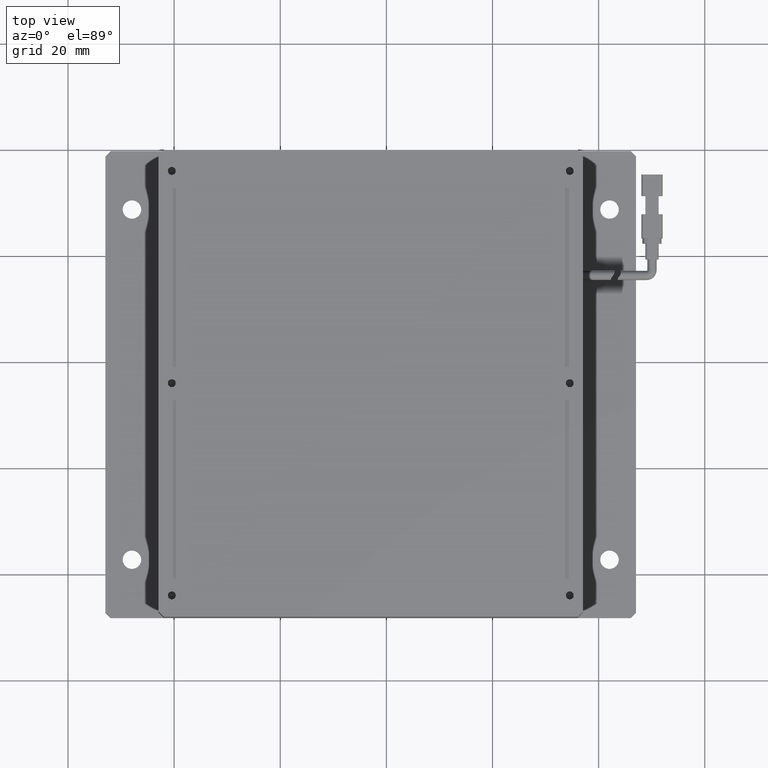
[diagram: clean part render]
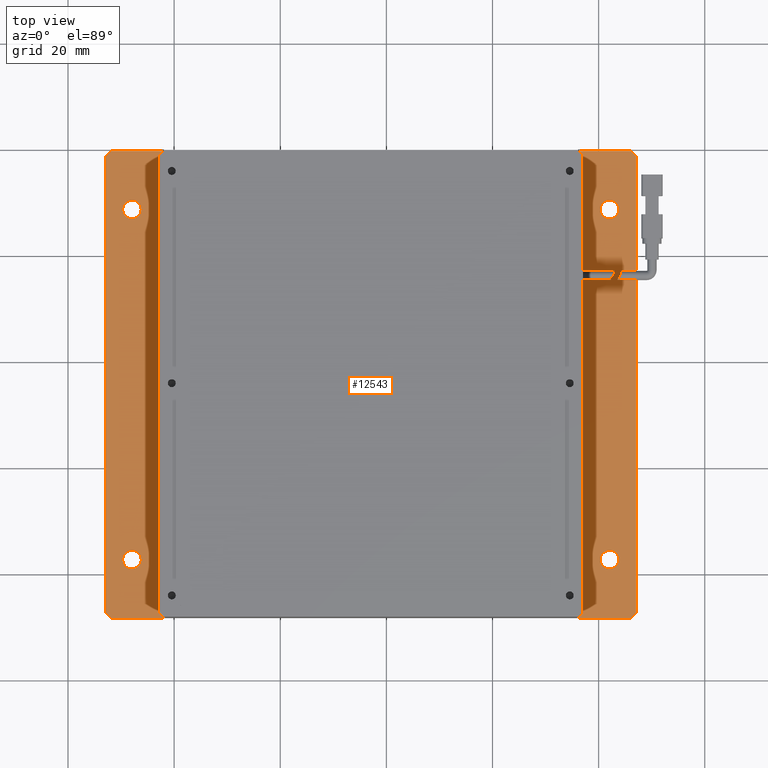
[diagram: same view with one face highlighted and labeled with its STEP entity id]
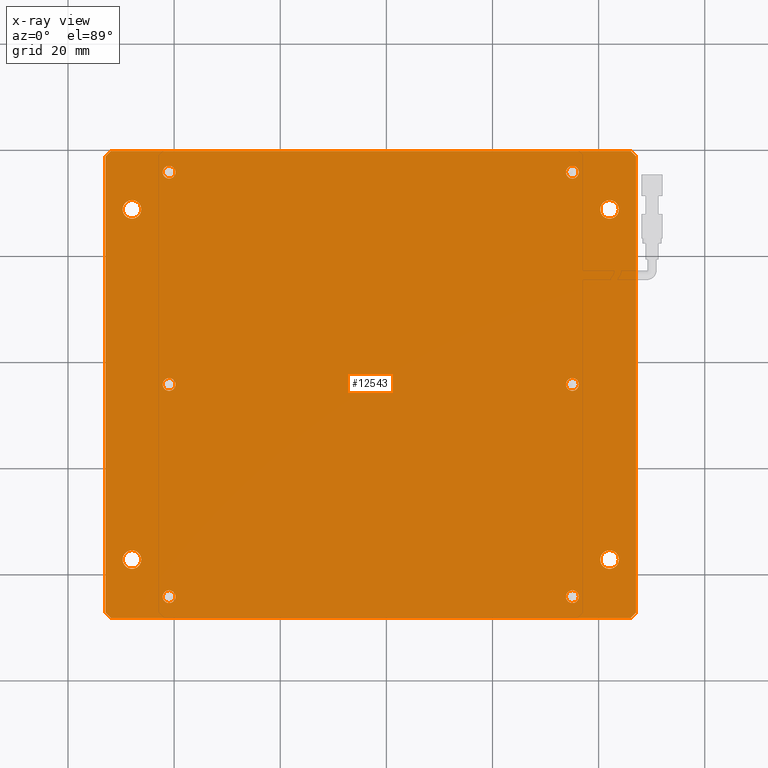
[diagram: x-ray of the same camera — body ghosted, the highlighted face saturated]
A machine part, top view. The second image highlights one B-rep face of the part: STEP entity #12543.
The next image is the same camera in x-ray: the body ghosted, the highlighted face saturated — about 0% of this face is hidden behind the body in this view.
In plain terms, the highlighted planar face has unit normal (0, 0, -1).
Its self-contained STEP definition (entity closure, byte-faithful):
#95 = CARTESIAN_POINT ( 'NONE',  ( -20.94768995799925500, 35.79992363497520800, -4.547577592273199800E-012 ) ) ;
#245 = EDGE_LOOP ( 'NONE', ( #7528, #15489 ) ) ;
#260 = DIRECTION ( 'NONE',  ( -0.7071067811865424700, 0.7071067811865526800, 0.0000000000000000000 ) ) ;
#278 = AXIS2_PLACEMENT_3D ( 'NONE', #13145, #4973, #14514 ) ;
#333 = CARTESIAN_POINT ( 'NONE',  ( -32.94768995799925900, 39.79992363497521500, -4.547577592273199800E-012 ) ) ;
#434 = LINE ( 'NONE', #16109, #4147 ) ;
#497 = AXIS2_PLACEMENT_3D ( 'NONE', #1814, #11435, #3230 ) ;
#641 = CARTESIAN_POINT ( 'NONE',  ( 55.05231004200073400, -44.20007636502478500, -4.547577592273199800E-012 ) ) ;
#708 = EDGE_CURVE ( 'NONE', #6803, #16233, #4785, .T. ) ;
#794 = ORIENTED_EDGE ( 'NONE', *, *, #5606, .F. ) ;
#895 = EDGE_CURVE ( 'NONE', #11322, #17503, #10952, .T. ) ;
#899 = DIRECTION ( 'NONE',  ( -1.000000000000000000, 0.0000000000000000000, 0.0000000000000000000 ) ) ;
#1105 = ORIENTED_EDGE ( 'NONE', *, *, #15283, .F. ) ;
#1118 = CARTESIAN_POINT ( 'NONE',  ( -19.74768995799926300, 35.79992363497520800, -4.547577592273199800E-012 ) ) ;
#1232 = EDGE_LOOP ( 'NONE', ( #4122, #794 ) ) ;
#1256 = ORIENTED_EDGE ( 'NONE', *, *, #3379, .F. ) ;
#1305 = EDGE_LOOP ( 'NONE', ( #1432, #13109 ) ) ;
#1329 = CARTESIAN_POINT ( 'NONE',  ( -19.74768995799926000, -4.200076365024784800, -4.547577592273199800E-012 ) ) ;
#1355 = DIRECTION ( 'NONE',  ( 0.0000000000000000000, 0.0000000000000000000, 1.000000000000000000 ) ) ;
#1432 = ORIENTED_EDGE ( 'NONE', *, *, #4187, .F. ) ;
#1455 = CIRCLE ( 'NONE', #17676, 1.199999999999992600 ) ;
#1480 = DIRECTION ( 'NONE',  ( -1.000000000000000000, 0.0000000000000000000, 0.0000000000000000000 ) ) ;
#1720 = DIRECTION ( 'NONE',  ( -1.000000000000000000, 0.0000000000000000000, -0.0000000000000000000 ) ) ;
#1814 = CARTESIAN_POINT ( 'NONE',  ( -27.94768995799927000, 28.79992363497522900, -4.547577592273199800E-012 ) ) ;
#1956 = FACE_BOUND ( 'NONE', #15390, .T. ) ;
#2011 = DIRECTION ( 'NONE',  ( -1.000000000000000000, 0.0000000000000000000, 0.0000000000000000000 ) ) ;
#2029 = AXIS2_PLACEMENT_3D ( 'NONE', #15225, #7088, #16597 ) ;
#2115 = CIRCLE ( 'NONE', #2029, 1.199999999999992600 ) ;
#2136 = VECTOR ( 'NONE', #260, 999.9999999999998900 ) ;
#2143 = ORIENTED_EDGE ( 'NONE', *, *, #6082, .F. ) ;
#2216 = VECTOR ( 'NONE', #16405, 1000.000000000000000 ) ;
#2219 = EDGE_LOOP ( 'NONE', ( #16670, #15469 ) ) ;
#2289 = DIRECTION ( 'NONE',  ( 0.0000000000000000000, 0.0000000000000000000, 1.000000000000000000 ) ) ;
#2302 = AXIS2_PLACEMENT_3D ( 'NONE', #10536, #2289, #11898 ) ;
#2398 = FACE_BOUND ( 'NONE', #9161, .T. ) ;
#2501 = VERTEX_POINT ( 'NONE', #4124 ) ;
#2541 = CARTESIAN_POINT ( 'NONE',  ( -26.19768995799927000, 28.79992363497522900, -4.547577592273199800E-012 ) ) ;
#2576 = ORIENTED_EDGE ( 'NONE', *, *, #708, .F. ) ;
#2694 = VERTEX_POINT ( 'NONE', #8517 ) ;
#2807 = EDGE_CURVE ( 'NONE', #3847, #10424, #7724, .T. ) ;
#2835 = CARTESIAN_POINT ( 'NONE',  ( 63.80231004200073400, -37.20007636502477100, -4.547577592273199800E-012 ) ) ;
#2843 = VERTEX_POINT ( 'NONE', #1118 ) ;
#2864 = DIRECTION ( 'NONE',  ( -0.0000000000000000000, -1.000000000000000000, -0.0000000000000000000 ) ) ;
#2961 = VERTEX_POINT ( 'NONE', #16705 ) ;
#3230 = DIRECTION ( 'NONE',  ( -1.000000000000000000, 0.0000000000000000000, 0.0000000000000000000 ) ) ;
#3379 = EDGE_CURVE ( 'NONE', #6178, #15406, #13624, .T. ) ;
#3410 = VERTEX_POINT ( 'NONE', #14996 ) ;
#3498 = DIRECTION ( 'NONE',  ( 0.0000000000000000000, 0.0000000000000000000, 1.000000000000000000 ) ) ;
#3519 = VERTEX_POINT ( 'NONE', #5632 ) ;
#3573 = CARTESIAN_POINT ( 'NONE',  ( 62.05231004200072700, -37.20007636502477100, -4.547577592273199800E-012 ) ) ;
#3641 = AXIS2_PLACEMENT_3D ( 'NONE', #17300, #9137, #899 ) ;
#3661 = VERTEX_POINT ( 'NONE', #16178 ) ;
#3691 = DIRECTION ( 'NONE',  ( 0.0000000000000000000, 0.0000000000000000000, 1.000000000000000000 ) ) ;
#3714 = CARTESIAN_POINT ( 'NONE',  ( 53.85231004200074500, 35.79992363497522200, -4.547577592273199800E-012 ) ) ;
#3838 = CARTESIAN_POINT ( 'NONE',  ( -32.94768995799925900, -48.20007636502478500, -4.547577592273199800E-012 ) ) ;
#3847 = VERTEX_POINT ( 'NONE', #17023 ) ;
#3880 = EDGE_CURVE ( 'NONE', #7285, #3661, #7261, .T. ) ;
#3902 = CIRCLE ( 'NONE', #278, 1.199999999999992600 ) ;
#4122 = ORIENTED_EDGE ( 'NONE', *, *, #17233, .F. ) ;
#4124 = CARTESIAN_POINT ( 'NONE',  ( -22.14768995799924400, -4.200076365024784800, -4.547577592273199800E-012 ) ) ;
#4147 = VECTOR ( 'NONE', #17517, 1000.000000000000000 ) ;
#4187 = EDGE_CURVE ( 'NONE', #15668, #7132, #11282, .T. ) ;
#4330 = ORIENTED_EDGE ( 'NONE', *, *, #10057, .F. ) ;
#4376 = CIRCLE ( 'NONE', #5369, 1.750000000000001600 ) ;
#4452 = CARTESIAN_POINT ( 'NONE',  ( 67.05231004200074100, -47.20007636502479900, -4.547577592273199800E-012 ) ) ;
#4455 = EDGE_CURVE ( 'NONE', #2694, #3519, #16382, .T. ) ;
#4780 = DIRECTION ( 'NONE',  ( 0.0000000000000000000, 0.0000000000000000000, 1.000000000000000000 ) ) ;
#4781 = DIRECTION ( 'NONE',  ( 0.0000000000000000000, 0.0000000000000000000, 1.000000000000000000 ) ) ;
#4785 = LINE ( 'NONE', #16956, #5649 ) ;
#4891 = VERTEX_POINT ( 'NONE', #6993 ) ;
#4973 = DIRECTION ( 'NONE',  ( 0.0000000000000000000, 0.0000000000000000000, 1.000000000000000000 ) ) ;
#5247 = FACE_BOUND ( 'NONE', #2219, .T. ) ;
#5297 = EDGE_CURVE ( 'NONE', #3519, #6803, #5852, .T. ) ;
#5369 = AXIS2_PLACEMENT_3D ( 'NONE', #12933, #4780, #14299 ) ;
#5606 = EDGE_CURVE ( 'NONE', #12197, #2961, #1455, .T. ) ;
#5632 = CARTESIAN_POINT ( 'NONE',  ( -31.94768995799925900, 39.79992363497521500, -4.547577592273199800E-012 ) ) ;
#5649 = VECTOR ( 'NONE', #6395, 1000.000000000000100 ) ;
#5684 = FACE_BOUND ( 'NONE', #1305, .T. ) ;
#5747 = EDGE_CURVE ( 'NONE', #3661, #7285, #13081, .T. ) ;
#5758 = CIRCLE ( 'NONE', #497, 1.749999999999998000 ) ;
#5852 = LINE ( 'NONE', #9570, #12667 ) ;
#5928 = CARTESIAN_POINT ( 'NONE',  ( -20.94768995799925200, -4.200076365024784800, -4.547577592273199800E-012 ) ) ;
#6082 = EDGE_CURVE ( 'NONE', #17794, #2843, #13881, .T. ) ;
#6178 = VERTEX_POINT ( 'NONE', #15649 ) ;
#6189 = ORIENTED_EDGE ( 'NONE', *, *, #895, .F. ) ;
#6395 = DIRECTION ( 'NONE',  ( 0.7071067811865474600, -0.7071067811865474600, 0.0000000000000000000 ) ) ;
#6490 = AXIS2_PLACEMENT_3D ( 'NONE', #95, #9740, #1480 ) ;
#6515 = CARTESIAN_POINT ( 'NONE',  ( -22.14768995799924800, 35.79992363497520800, -4.547577592273199800E-012 ) ) ;
#6530 = EDGE_CURVE ( 'NONE', #2501, #8816, #10245, .T. ) ;
#6531 = FACE_BOUND ( 'NONE', #10068, .T. ) ;
#6567 = ORIENTED_EDGE ( 'NONE', *, *, #16034, .F. ) ;
#6655 = VERTEX_POINT ( 'NONE', #4452 ) ;
#6663 = ORIENTED_EDGE ( 'NONE', *, *, #13037, .F. ) ;
#6700 = EDGE_CURVE ( 'NONE', #3410, #13473, #5758, .T. ) ;
#6743 = ORIENTED_EDGE ( 'NONE', *, *, #2807, .F. ) ;
#6803 = VERTEX_POINT ( 'NONE', #14357 ) ;
#6869 = DIRECTION ( 'NONE',  ( 0.0000000000000000000, 0.0000000000000000000, 1.000000000000000000 ) ) ;
#6993 = CARTESIAN_POINT ( 'NONE',  ( 66.05231004200074100, -48.20007636502478500, -4.547577592273199800E-012 ) ) ;
#7024 = AXIS2_PLACEMENT_3D ( 'NONE', #641, #10253, #2011 ) ;
#7088 = DIRECTION ( 'NONE',  ( 0.0000000000000000000, 0.0000000000000000000, 1.000000000000000000 ) ) ;
#7112 = CIRCLE ( 'NONE', #9419, 1.749999999999998000 ) ;
#7132 = VERTEX_POINT ( 'NONE', #9227 ) ;
#7205 = LINE ( 'NONE', #8382, #17632 ) ;
#7261 = CIRCLE ( 'NONE', #9065, 1.750000000000001600 ) ;
#7285 = VERTEX_POINT ( 'NONE', #8269 ) ;
#7312 = DIRECTION ( 'NONE',  ( -1.000000000000000000, 0.0000000000000000000, 0.0000000000000000000 ) ) ;
#7398 = CARTESIAN_POINT ( 'NONE',  ( -20.94768995799925500, 35.79992363497520800, -4.547577592273199800E-012 ) ) ;
#7528 = ORIENTED_EDGE ( 'NONE', *, *, #6700, .F. ) ;
#7557 = ORIENTED_EDGE ( 'NONE', *, *, #5297, .F. ) ;
#7606 = CARTESIAN_POINT ( 'NONE',  ( 55.05231004200073400, -44.20007636502478500, -4.547577592273199800E-012 ) ) ;
#7695 = DIRECTION ( 'NONE',  ( 0.0000000000000000000, 0.0000000000000000000, 1.000000000000000000 ) ) ;
#7724 = CIRCLE ( 'NONE', #16930, 1.749999999999998000 ) ;
#7857 = DIRECTION ( 'NONE',  ( 0.0000000000000000000, 0.0000000000000000000, 1.000000000000000000 ) ) ;
#7913 = ORIENTED_EDGE ( 'NONE', *, *, #8140, .F. ) ;
#7928 = AXIS2_PLACEMENT_3D ( 'NONE', #16433, #7857, #8262 ) ;
#8140 = EDGE_CURVE ( 'NONE', #10424, #3847, #7112, .T. ) ;
#8262 = DIRECTION ( 'NONE',  ( -1.000000000000000000, 0.0000000000000000000, 0.0000000000000000000 ) ) ;
#8269 = CARTESIAN_POINT ( 'NONE',  ( 60.30231004200072700, 28.79992363497521500, -4.547577592273199800E-012 ) ) ;
#8323 = ORIENTED_EDGE ( 'NONE', *, *, #12553, .F. ) ;
#8382 = CARTESIAN_POINT ( 'NONE',  ( 67.05231004200074100, 39.79992363497521500, -4.547577592273199800E-012 ) ) ;
#8438 = CARTESIAN_POINT ( 'NONE',  ( 53.85231004200074500, -44.20007636502478500, -4.547577592273199800E-012 ) ) ;
#8457 = VECTOR ( 'NONE', #16900, 1000.000000000000000 ) ;
#8470 = PLANE ( 'NONE',  #9968 ) ;
#8517 = CARTESIAN_POINT ( 'NONE',  ( -32.94768995799926600, 38.79992363497523700, -4.547577592273199800E-012 ) ) ;
#8657 = CIRCLE ( 'NONE', #6490, 1.199999999999992600 ) ;
#8714 = DIRECTION ( 'NONE',  ( -1.000000000000000000, 0.0000000000000000000, 0.0000000000000000000 ) ) ;
#8816 = VERTEX_POINT ( 'NONE', #1329 ) ;
#8857 = FACE_BOUND ( 'NONE', #11994, .T. ) ;
#8887 = LINE ( 'NONE', #15516, #8457 ) ;
#9016 = VERTEX_POINT ( 'NONE', #12922 ) ;
#9053 = AXIS2_PLACEMENT_3D ( 'NONE', #5928, #15444, #7312 ) ;
#9065 = AXIS2_PLACEMENT_3D ( 'NONE', #11725, #4781, #11449 ) ;
#9137 = DIRECTION ( 'NONE',  ( 0.0000000000000000000, 0.0000000000000000000, 1.000000000000000000 ) ) ;
#9161 = EDGE_LOOP ( 'NONE', ( #11010, #1256 ) ) ;
#9227 = CARTESIAN_POINT ( 'NONE',  ( 56.25231004200073000, -44.20007636502478500, -4.547577592273199800E-012 ) ) ;
#9294 = FACE_BOUND ( 'NONE', #1232, .T. ) ;
#9419 = AXIS2_PLACEMENT_3D ( 'NONE', #11860, #3691, #13229 ) ;
#9506 = AXIS2_PLACEMENT_3D ( 'NONE', #15017, #6869, #16395 ) ;
#9518 = CARTESIAN_POINT ( 'NONE',  ( 55.05231004200073400, -4.200076365024784800, -4.547577592273199800E-012 ) ) ;
#9570 = CARTESIAN_POINT ( 'NONE',  ( -32.94768995799925900, 39.79992363497521500, -4.547577592273199800E-012 ) ) ;
#9667 = EDGE_LOOP ( 'NONE', ( #2576, #7557, #10033, #14138, #6663, #15783, #12048, #4330 ) ) ;
#9740 = DIRECTION ( 'NONE',  ( 0.0000000000000000000, 0.0000000000000000000, 1.000000000000000000 ) ) ;
#9965 = DIRECTION ( 'NONE',  ( 0.0000000000000000000, 0.0000000000000000000, -1.000000000000000000 ) ) ;
#9968 = AXIS2_PLACEMENT_3D ( 'NONE', #333, #9965, #1720 ) ;
#10033 = ORIENTED_EDGE ( 'NONE', *, *, #4455, .F. ) ;
#10055 = CIRCLE ( 'NONE', #7024, 1.199999999999992600 ) ;
#10057 = EDGE_CURVE ( 'NONE', #16233, #6655, #7205, .T. ) ;
#10068 = EDGE_LOOP ( 'NONE', ( #2143, #15901 ) ) ;
#10226 = VERTEX_POINT ( 'NONE', #15651 ) ;
#10245 = CIRCLE ( 'NONE', #9506, 1.199999999999992600 ) ;
#10253 = DIRECTION ( 'NONE',  ( 0.0000000000000000000, 0.0000000000000000000, 1.000000000000000000 ) ) ;
#10399 = LINE ( 'NONE', #3838, #14030 ) ;
#10401 = VERTEX_POINT ( 'NONE', #3714 ) ;
#10424 = VERTEX_POINT ( 'NONE', #13191 ) ;
#10536 = CARTESIAN_POINT ( 'NONE',  ( 62.05231004200072700, 28.79992363497521500, -4.547577592273199800E-012 ) ) ;
#10617 = DIRECTION ( 'NONE',  ( -1.000000000000000000, 0.0000000000000000000, 0.0000000000000000000 ) ) ;
#10821 = DIRECTION ( 'NONE',  ( 1.000000000000000000, -0.0000000000000000000, 0.0000000000000000000 ) ) ;
#10952 = CIRCLE ( 'NONE', #15332, 1.750000000000001600 ) ;
#10988 = CARTESIAN_POINT ( 'NONE',  ( -27.94768995799929100, -37.20007636502477100, -4.547577592273199800E-012 ) ) ;
#11010 = ORIENTED_EDGE ( 'NONE', *, *, #11023, .F. ) ;
#11023 = EDGE_CURVE ( 'NONE', #15406, #6178, #16455, .T. ) ;
#11106 = DIRECTION ( 'NONE',  ( 0.0000000000000000000, 0.0000000000000000000, 1.000000000000000000 ) ) ;
#11282 = CIRCLE ( 'NONE', #11470, 1.199999999999992600 ) ;
#11322 = VERTEX_POINT ( 'NONE', #11379 ) ;
#11379 = CARTESIAN_POINT ( 'NONE',  ( 60.30231004200072700, -37.20007636502477100, -4.547577592273199800E-012 ) ) ;
#11435 = DIRECTION ( 'NONE',  ( 0.0000000000000000000, 0.0000000000000000000, 1.000000000000000000 ) ) ;
#11449 = DIRECTION ( 'NONE',  ( -1.000000000000000000, 0.0000000000000000000, 0.0000000000000000000 ) ) ;
#11470 = AXIS2_PLACEMENT_3D ( 'NONE', #7606, #11106, #12669 ) ;
#11562 = EDGE_CURVE ( 'NONE', #4891, #10226, #10399, .T. ) ;
#11679 = CARTESIAN_POINT ( 'NONE',  ( -27.94768995799927000, 28.79992363497522900, -4.547577592273199800E-012 ) ) ;
#11713 = AXIS2_PLACEMENT_3D ( 'NONE', #11679, #3498, #13061 ) ;
#11725 = CARTESIAN_POINT ( 'NONE',  ( 62.05231004200072700, 28.79992363497521500, -4.547577592273199800E-012 ) ) ;
#11838 = CARTESIAN_POINT ( 'NONE',  ( -22.14768995799924800, -44.20007636502478500, -4.547577592273199800E-012 ) ) ;
#11860 = CARTESIAN_POINT ( 'NONE',  ( -27.94768995799929100, -37.20007636502477100, -4.547577592273199800E-012 ) ) ;
#11898 = DIRECTION ( 'NONE',  ( -1.000000000000000000, 0.0000000000000000000, 0.0000000000000000000 ) ) ;
#11994 = EDGE_LOOP ( 'NONE', ( #6189, #1105 ) ) ;
#12024 = EDGE_CURVE ( 'NONE', #6655, #4891, #8887, .T. ) ;
#12048 = ORIENTED_EDGE ( 'NONE', *, *, #12024, .F. ) ;
#12197 = VERTEX_POINT ( 'NONE', #17296 ) ;
#12489 = FACE_BOUND ( 'NONE', #245, .T. ) ;
#12543 = ADVANCED_FACE ( 'NONE', ( #12920, #16548, #2398, #6531, #9294, #5684, #1956, #16124, #12489, #8857, #5247 ), #8470, .F. ) ;
#12553 = EDGE_CURVE ( 'NONE', #8816, #2501, #14412, .T. ) ;
#12627 = CIRCLE ( 'NONE', #3641, 1.199999999999992600 ) ;
#12667 = VECTOR ( 'NONE', #10821, 1000.000000000000000 ) ;
#12669 = DIRECTION ( 'NONE',  ( -1.000000000000000000, 0.0000000000000000000, 0.0000000000000000000 ) ) ;
#12786 = EDGE_CURVE ( 'NONE', #9016, #2694, #434, .T. ) ;
#12822 = EDGE_LOOP ( 'NONE', ( #6743, #7913 ) ) ;
#12920 = FACE_OUTER_BOUND ( 'NONE', #9667, .T. ) ;
#12922 = CARTESIAN_POINT ( 'NONE',  ( -32.94768995799925900, -47.20007636502478500, -4.547577592273199800E-012 ) ) ;
#12934 = CIRCLE ( 'NONE', #11713, 1.749999999999998000 ) ;
#12933 = CARTESIAN_POINT ( 'NONE',  ( 62.05231004200072700, -37.20007636502477100, -4.547577592273199800E-012 ) ) ;
#13037 = EDGE_CURVE ( 'NONE', #10226, #9016, #13518, .T. ) ;
#13061 = DIRECTION ( 'NONE',  ( -1.000000000000000000, 0.0000000000000000000, 0.0000000000000000000 ) ) ;
#13081 = CIRCLE ( 'NONE', #2302, 1.750000000000001600 ) ;
#13109 = ORIENTED_EDGE ( 'NONE', *, *, #17697, .F. ) ;
#13145 = CARTESIAN_POINT ( 'NONE',  ( 55.05231004200073400, -4.200076365024784800, -4.547577592273199800E-012 ) ) ;
#13191 = CARTESIAN_POINT ( 'NONE',  ( -26.19768995799929500, -37.20007636502477100, -4.547577592273199800E-012 ) ) ;
#13229 = DIRECTION ( 'NONE',  ( -1.000000000000000000, 0.0000000000000000000, 0.0000000000000000000 ) ) ;
#13333 = EDGE_LOOP ( 'NONE', ( #15796, #8323 ) ) ;
#13473 = VERTEX_POINT ( 'NONE', #2541 ) ;
#13518 = LINE ( 'NONE', #13929, #2136 ) ;
#13624 = CIRCLE ( 'NONE', #7928, 1.199999999999992600 ) ;
#13660 = CARTESIAN_POINT ( 'NONE',  ( 67.05231004200074100, 38.79992363497520800, -4.547577592273199800E-012 ) ) ;
#13670 = EDGE_CURVE ( 'NONE', #15761, #10401, #2115, .T. ) ;
#13881 = CIRCLE ( 'NONE', #17465, 1.199999999999992600 ) ;
#13929 = CARTESIAN_POINT ( 'NONE',  ( -31.94768995799927300, -48.20007636502478500, -4.547577592273199800E-012 ) ) ;
#14030 = VECTOR ( 'NONE', #14749, 1000.000000000000000 ) ;
#14112 = ORIENTED_EDGE ( 'NONE', *, *, #13670, .F. ) ;
#14138 = ORIENTED_EDGE ( 'NONE', *, *, #12786, .F. ) ;
#14299 = DIRECTION ( 'NONE',  ( -1.000000000000000000, 0.0000000000000000000, 0.0000000000000000000 ) ) ;
#14328 = EDGE_CURVE ( 'NONE', #13473, #3410, #12934, .T. ) ;
#14357 = CARTESIAN_POINT ( 'NONE',  ( 66.05231004200076900, 39.79992363497521500, -4.547577592273199800E-012 ) ) ;
#14412 = CIRCLE ( 'NONE', #9053, 1.199999999999992600 ) ;
#14514 = DIRECTION ( 'NONE',  ( -1.000000000000000000, 0.0000000000000000000, 0.0000000000000000000 ) ) ;
#14717 = EDGE_CURVE ( 'NONE', #2843, #17794, #8657, .T. ) ;
#14749 = DIRECTION ( 'NONE',  ( -1.000000000000000000, 0.0000000000000000000, -0.0000000000000000000 ) ) ;
#14996 = CARTESIAN_POINT ( 'NONE',  ( -29.69768995799926600, 28.79992363497522900, -4.547577592273199800E-012 ) ) ;
#15017 = CARTESIAN_POINT ( 'NONE',  ( -20.94768995799925200, -4.200076365024784800, -4.547577592273199800E-012 ) ) ;
#15225 = CARTESIAN_POINT ( 'NONE',  ( 55.05231004200073400, 35.79992363497522200, -4.547577592273199800E-012 ) ) ;
#15283 = EDGE_CURVE ( 'NONE', #17503, #11322, #4376, .T. ) ;
#15332 = AXIS2_PLACEMENT_3D ( 'NONE', #3573, #15927, #17009 ) ;
#15390 = EDGE_LOOP ( 'NONE', ( #6567, #14112 ) ) ;
#15406 = VERTEX_POINT ( 'NONE', #11838 ) ;
#15444 = DIRECTION ( 'NONE',  ( 0.0000000000000000000, 0.0000000000000000000, 1.000000000000000000 ) ) ;
#15469 = ORIENTED_EDGE ( 'NONE', *, *, #5747, .F. ) ;
#15489 = ORIENTED_EDGE ( 'NONE', *, *, #14328, .F. ) ;
#15516 = CARTESIAN_POINT ( 'NONE',  ( 67.05231004200074100, -47.20007636502479900, -4.547577592273199800E-012 ) ) ;
#15649 = CARTESIAN_POINT ( 'NONE',  ( -19.74768995799926300, -44.20007636502478500, -4.547577592273199800E-012 ) ) ;
#15651 = CARTESIAN_POINT ( 'NONE',  ( -31.94768995799927300, -48.20007636502478500, -4.547577592273199800E-012 ) ) ;
#15668 = VERTEX_POINT ( 'NONE', #8438 ) ;
#15761 = VERTEX_POINT ( 'NONE', #16742 ) ;
#15783 = ORIENTED_EDGE ( 'NONE', *, *, #11562, .F. ) ;
#15796 = ORIENTED_EDGE ( 'NONE', *, *, #6530, .F. ) ;
#15819 = DIRECTION ( 'NONE',  ( 0.0000000000000000000, 0.0000000000000000000, 1.000000000000000000 ) ) ;
#15852 = CARTESIAN_POINT ( 'NONE',  ( -20.94768995799925500, -44.20007636502478500, -4.547577592273199800E-012 ) ) ;
#15879 = DIRECTION ( 'NONE',  ( -1.000000000000000000, 0.0000000000000000000, 0.0000000000000000000 ) ) ;
#15901 = ORIENTED_EDGE ( 'NONE', *, *, #14717, .F. ) ;
#15927 = DIRECTION ( 'NONE',  ( 0.0000000000000000000, 0.0000000000000000000, 1.000000000000000000 ) ) ;
#16034 = EDGE_CURVE ( 'NONE', #10401, #15761, #12627, .T. ) ;
#16109 = CARTESIAN_POINT ( 'NONE',  ( -32.94768995799925900, 39.79992363497521500, -4.547577592273199800E-012 ) ) ;
#16124 = FACE_BOUND ( 'NONE', #12822, .T. ) ;
#16178 = CARTESIAN_POINT ( 'NONE',  ( 63.80231004200073400, 28.79992363497521500, -4.547577592273199800E-012 ) ) ;
#16233 = VERTEX_POINT ( 'NONE', #13660 ) ;
#16382 = LINE ( 'NONE', #17074, #2216 ) ;
#16395 = DIRECTION ( 'NONE',  ( -1.000000000000000000, 0.0000000000000000000, 0.0000000000000000000 ) ) ;
#16405 = DIRECTION ( 'NONE',  ( 0.7071067811865512400, 0.7071067811865439100, 0.0000000000000000000 ) ) ;
#16433 = CARTESIAN_POINT ( 'NONE',  ( -20.94768995799925500, -44.20007636502478500, -4.547577592273199800E-012 ) ) ;
#16455 = CIRCLE ( 'NONE', #17003, 1.199999999999992600 ) ;
#16548 = FACE_BOUND ( 'NONE', #13333, .T. ) ;
#16597 = DIRECTION ( 'NONE',  ( -1.000000000000000000, 0.0000000000000000000, 0.0000000000000000000 ) ) ;
#16670 = ORIENTED_EDGE ( 'NONE', *, *, #3880, .F. ) ;
#16705 = CARTESIAN_POINT ( 'NONE',  ( 53.85231004200074500, -4.200076365024784800, -4.547577592273199800E-012 ) ) ;
#16742 = CARTESIAN_POINT ( 'NONE',  ( 56.25231004200073000, 35.79992363497522200, -4.547577592273199800E-012 ) ) ;
#16900 = DIRECTION ( 'NONE',  ( -0.7071067811865622300, -0.7071067811865328100, 0.0000000000000000000 ) ) ;
#16901 = DIRECTION ( 'NONE',  ( 0.0000000000000000000, 0.0000000000000000000, 1.000000000000000000 ) ) ;
#16930 = AXIS2_PLACEMENT_3D ( 'NONE', #10988, #1355, #10617 ) ;
#16956 = CARTESIAN_POINT ( 'NONE',  ( 66.05231004200074100, 39.79992363497521500, -4.547577592273199800E-012 ) ) ;
#17003 = AXIS2_PLACEMENT_3D ( 'NONE', #15852, #7695, #17204 ) ;
#17009 = DIRECTION ( 'NONE',  ( -1.000000000000000000, 0.0000000000000000000, 0.0000000000000000000 ) ) ;
#17023 = CARTESIAN_POINT ( 'NONE',  ( -29.69768995799929100, -37.20007636502477100, -4.547577592273199800E-012 ) ) ;
#17074 = CARTESIAN_POINT ( 'NONE',  ( -32.94768995799927300, 38.79992363497520800, -4.547577592273199800E-012 ) ) ;
#17204 = DIRECTION ( 'NONE',  ( -1.000000000000000000, 0.0000000000000000000, 0.0000000000000000000 ) ) ;
#17233 = EDGE_CURVE ( 'NONE', #2961, #12197, #3902, .T. ) ;
#17296 = CARTESIAN_POINT ( 'NONE',  ( 56.25231004200073000, -4.200076365024784800, -4.547577592273199800E-012 ) ) ;
#17300 = CARTESIAN_POINT ( 'NONE',  ( 55.05231004200073400, 35.79992363497522200, -4.547577592273199800E-012 ) ) ;
#17465 = AXIS2_PLACEMENT_3D ( 'NONE', #7398, #16901, #8714 ) ;
#17503 = VERTEX_POINT ( 'NONE', #2835 ) ;
#17517 = DIRECTION ( 'NONE',  ( 0.0000000000000000000, 1.000000000000000000, 0.0000000000000000000 ) ) ;
#17632 = VECTOR ( 'NONE', #2864, 1000.000000000000000 ) ;
#17676 = AXIS2_PLACEMENT_3D ( 'NONE', #9518, #15819, #15879 ) ;
#17697 = EDGE_CURVE ( 'NONE', #7132, #15668, #10055, .T. ) ;
#17794 = VERTEX_POINT ( 'NONE', #6515 ) ;